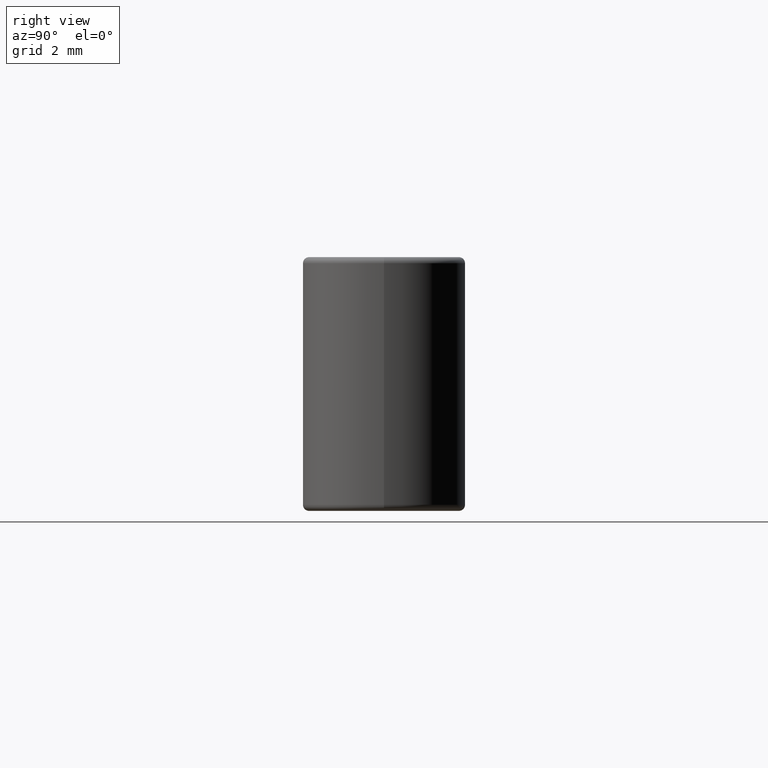
[diagram: clean part render]
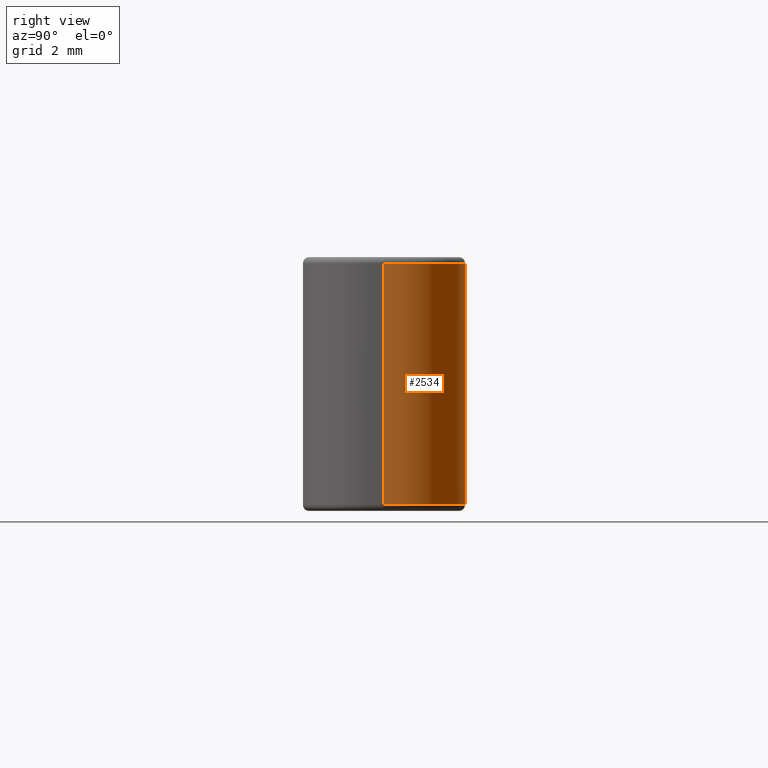
[diagram: same view with one face highlighted and labeled with its STEP entity id]
A machine part, right view. The second image highlights one B-rep face of the part: STEP entity #2534.
In plain terms, the highlighted cylindrical surface (partial cylindrical patch) has radius 2.65 mm, axis along (0, 0, -1).
Its self-contained STEP definition (entity closure, byte-faithful):
#115 = LINE ( 'NONE', #1433, #1418 ) ;
#149 = LINE ( 'NONE', #1322, #2579 ) ;
#203 = ORIENTED_EDGE ( 'NONE', *, *, #1545, .F. ) ;
#241 = ORIENTED_EDGE ( 'NONE', *, *, #650, .T. ) ;
#650 = EDGE_CURVE ( 'NONE', #1878, #834, #1408, .T. ) ;
#834 = VERTEX_POINT ( 'NONE', #1756 ) ;
#978 = FACE_OUTER_BOUND ( 'NONE', #1052, .T. ) ;
#1018 = CIRCLE ( 'NONE', #1185, 2.649999999999999467 ) ;
#1030 = DIRECTION ( 'NONE',  ( 1.000000000000000000, 0.000000000000000000, 0.000000000000000000 ) ) ;
#1052 = EDGE_LOOP ( 'NONE', ( #2541, #241, #203, #1283 ) ) ;
#1120 = EDGE_CURVE ( 'NONE', #1878, #1947, #149, .T. ) ;
#1185 = AXIS2_PLACEMENT_3D ( 'NONE', #2607, #3411, #2836 ) ;
#1218 = CARTESIAN_POINT ( 'NONE',  ( 8.249999999999996447, 4.336808689942017736E-16, 8.300000000000000711 ) ) ;
#1283 = ORIENTED_EDGE ( 'NONE', *, *, #1660, .T. ) ;
#1322 = CARTESIAN_POINT ( 'NONE',  ( 10.90000000000000036, 4.336808689942017736E-16, 8.300000000000000711 ) ) ;
#1408 = CIRCLE ( 'NONE', #1740, 2.649999999999999467 ) ;
#1417 = DIRECTION ( 'NONE',  ( 0.000000000000000000, 0.000000000000000000, -1.000000000000000000 ) ) ;
#1418 = VECTOR ( 'NONE', #1417, 1000.000000000000000 ) ;
#1433 = CARTESIAN_POINT ( 'NONE',  ( 8.249999999999996447, 2.649999999999999911, 8.300000000000000711 ) ) ;
#1545 = EDGE_CURVE ( 'NONE', #3414, #834, #115, .T. ) ;
#1660 = EDGE_CURVE ( 'NONE', #3414, #1947, #1018, .T. ) ;
#1740 = AXIS2_PLACEMENT_3D ( 'NONE', #2397, #2939, #1030 ) ;
#1756 = CARTESIAN_POINT ( 'NONE',  ( 8.249999999999996447, 2.649999999999999911, 0.2000000000000005107 ) ) ;
#1775 = CARTESIAN_POINT ( 'NONE',  ( 10.90000000000000036, 4.336808689942017736E-16, 8.099999999999999645 ) ) ;
#1878 = VERTEX_POINT ( 'NONE', #3069 ) ;
#1947 = VERTEX_POINT ( 'NONE', #1775 ) ;
#2285 = DIRECTION ( 'NONE',  ( 0.000000000000000000, 0.000000000000000000, -1.000000000000000000 ) ) ;
#2397 = CARTESIAN_POINT ( 'NONE',  ( 8.249999999999996447, 4.336808689942017736E-16, 0.2000000000000005107 ) ) ;
#2404 = AXIS2_PLACEMENT_3D ( 'NONE', #1218, #2285, #3350 ) ;
#2534 = ADVANCED_FACE ( 'NONE', ( #978 ), #2816, .T. ) ;
#2541 = ORIENTED_EDGE ( 'NONE', *, *, #1120, .F. ) ;
#2579 = VECTOR ( 'NONE', #2910, 1000.000000000000000 ) ;
#2607 = CARTESIAN_POINT ( 'NONE',  ( 8.249999999999996447, 4.336808689942017736E-16, 8.099999999999999645 ) ) ;
#2816 = CYLINDRICAL_SURFACE ( 'NONE', #2404, 2.649999999999999467 ) ;
#2836 = DIRECTION ( 'NONE',  ( 1.000000000000000000, 0.000000000000000000, 0.000000000000000000 ) ) ;
#2910 = DIRECTION ( 'NONE',  ( -0.000000000000000000, -0.000000000000000000, 1.000000000000000000 ) ) ;
#2939 = DIRECTION ( 'NONE',  ( -0.000000000000000000, 0.000000000000000000, 1.000000000000000000 ) ) ;
#3069 = CARTESIAN_POINT ( 'NONE',  ( 10.90000000000000036, 4.336808689942017736E-16, 0.2000000000000005107 ) ) ;
#3291 = CARTESIAN_POINT ( 'NONE',  ( 8.249999999999996447, 2.649999999999999911, 8.099999999999999645 ) ) ;
#3350 = DIRECTION ( 'NONE',  ( -1.000000000000000000, 0.000000000000000000, 0.000000000000000000 ) ) ;
#3411 = DIRECTION ( 'NONE',  ( 0.000000000000000000, -0.000000000000000000, -1.000000000000000000 ) ) ;
#3414 = VERTEX_POINT ( 'NONE', #3291 ) ;